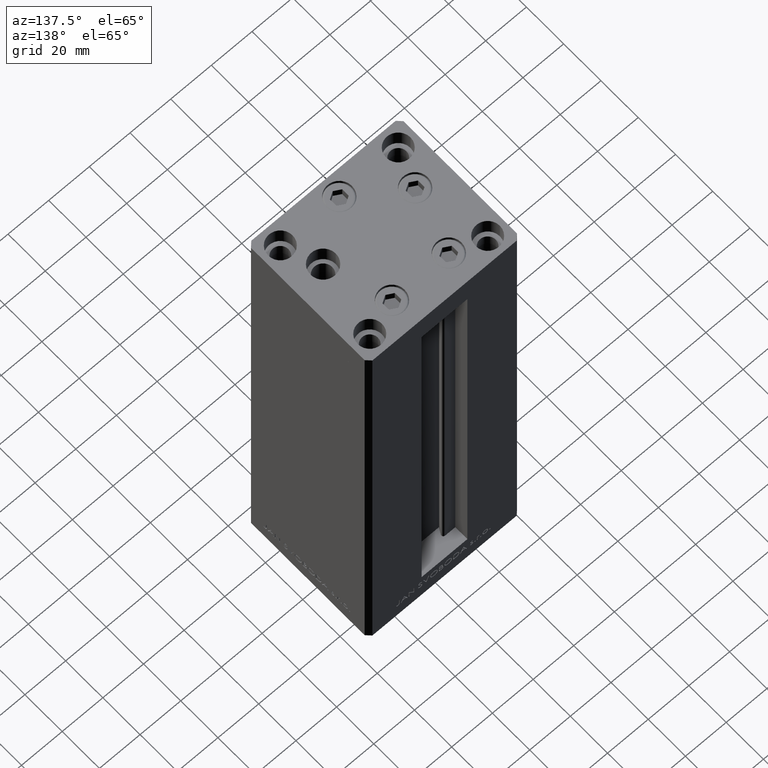
[diagram: clean part render]
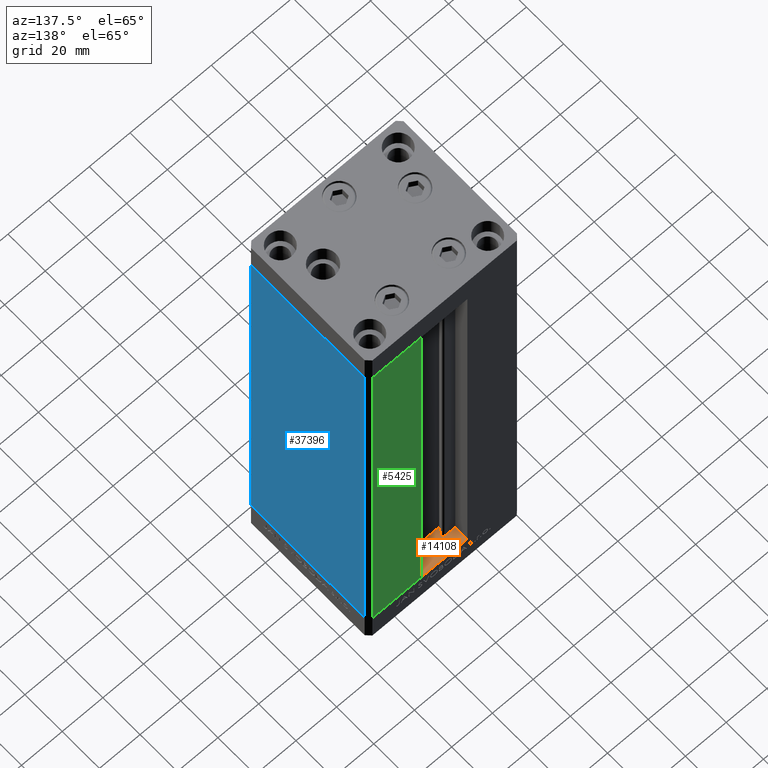
[diagram: same view with three faces highlighted in distinct colors, each labeled with its STEP entity id]
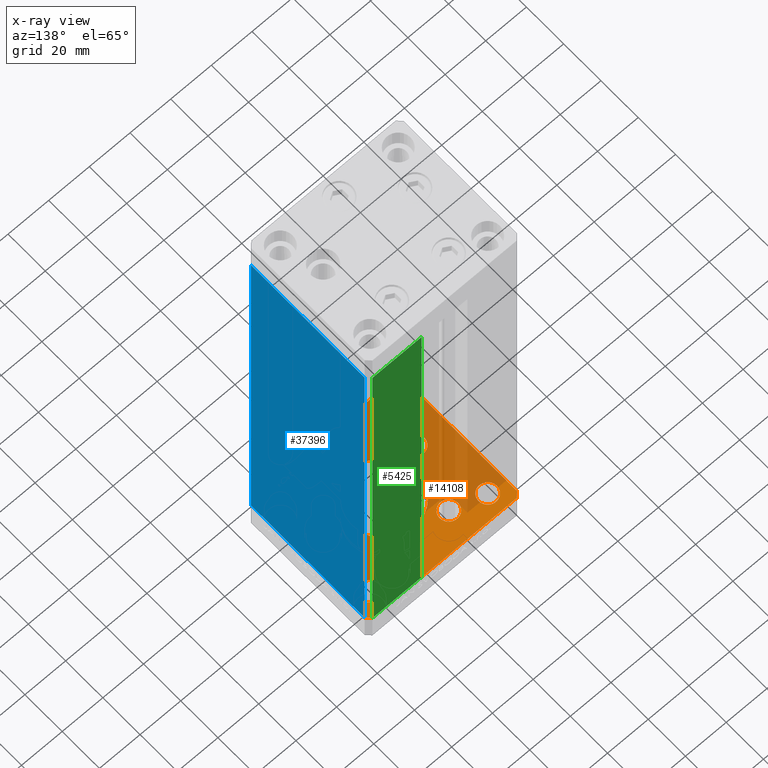
[diagram: x-ray of the same camera — body ghosted, the three highlighted faces saturated]
A machine part, auxiliary view with three faces highlighted in distinct colors.
The next image is the same camera in x-ray (body ghosted, the three faces saturated) — at least one of them is partly hidden behind the body in this view.
Their STEP definitions:

[orange] entity #14108 — the highlighted planar face has unit normal (0, 0, -1).
#306 = CARTESIAN_POINT ( 'NONE',  ( 9.491068579633235913, 19.50000000000000000, -15.00000000000000000 ) ) ;
#381 = FACE_BOUND ( 'NONE', #2397, .T. ) ;
#401 = CIRCLE ( 'NONE', #6041, 4.500000000000000888 ) ;
#686 = DIRECTION ( 'NONE',  ( 1.000000000000000000, 0.000000000000000000, 0.000000000000000000 ) ) ;
#717 = ORIENTED_EDGE ( 'NONE', *, *, #10605, .T. ) ;
#769 = ORIENTED_EDGE ( 'NONE', *, *, #49077, .F. ) ;
#964 = ORIENTED_EDGE ( 'NONE', *, *, #31906, .T. ) ;
#1410 = VERTEX_POINT ( 'NONE', #26903 ) ;
#2252 = ORIENTED_EDGE ( 'NONE', *, *, #18548, .T. ) ;
#2397 = EDGE_LOOP ( 'NONE', ( #48423, #47197 ) ) ;
#2455 = VERTEX_POINT ( 'NONE', #15011 ) ;
#2463 = EDGE_CURVE ( 'NONE', #33873, #22283, #8936, .T. ) ;
#2512 = ORIENTED_EDGE ( 'NONE', *, *, #44664, .T. ) ;
#2570 = VERTEX_POINT ( 'NONE', #30588 ) ;
#3215 = CARTESIAN_POINT ( 'NONE',  ( -18.49106857963323947, 19.50000000000000000, -15.00000000000000000 ) ) ;
#3457 = CIRCLE ( 'NONE', #23474, 4.500000000000000888 ) ;
#3520 = DIRECTION ( 'NONE',  ( 1.000000000000000000, 0.000000000000000000, 0.000000000000000000 ) ) ;
#3670 = FACE_BOUND ( 'NONE', #38796, .T. ) ;
#3817 = VERTEX_POINT ( 'NONE', #26708 ) ;
#3843 = CIRCLE ( 'NONE', #9423, 4.500000000000001776 ) ;
#4245 = CARTESIAN_POINT ( 'NONE',  ( -29.00000000000000000, -23.99999999999999645, -15.00000000000000000 ) ) ;
#4275 = AXIS2_PLACEMENT_3D ( 'NONE', #35621, #43168, #42666 ) ;
#4284 = CARTESIAN_POINT ( 'NONE',  ( 0.000000000000000000, -24.00000000000001066, -15.00000000000000000 ) ) ;
#4295 = ORIENTED_EDGE ( 'NONE', *, *, #5799, .T. ) ;
#4297 = CIRCLE ( 'NONE', #29979, 4.500000000000001776 ) ;
#4609 = VERTEX_POINT ( 'NONE', #42469 ) ;
#5140 = AXIS2_PLACEMENT_3D ( 'NONE', #17505, #29065, #48699 ) ;
#5163 = EDGE_CURVE ( 'NONE', #35081, #12331, #37034, .T. ) ;
#5181 = AXIS2_PLACEMENT_3D ( 'NONE', #30037, #7432, #14948 ) ;
#5306 = VERTEX_POINT ( 'NONE', #32220 ) ;
#5660 = EDGE_LOOP ( 'NONE', ( #717, #18066 ) ) ;
#5715 = CIRCLE ( 'NONE', #45812, 4.499999999999997335 ) ;
#5799 = EDGE_CURVE ( 'NONE', #4609, #18187, #3457, .T. ) ;
#5866 = DIRECTION ( 'NONE',  ( -0.000000000000000000, 0.000000000000000000, 1.000000000000000000 ) ) ;
#6041 = AXIS2_PLACEMENT_3D ( 'NONE', #11771, #45726, #3520 ) ;
#6489 = DIRECTION ( 'NONE',  ( -0.000000000000000000, 0.000000000000000000, 1.000000000000000000 ) ) ;
#6530 = ORIENTED_EDGE ( 'NONE', *, *, #29595, .F. ) ;
#6568 = DIRECTION ( 'NONE',  ( -0.000000000000000000, 0.000000000000000000, 1.000000000000000000 ) ) ;
#6590 = EDGE_LOOP ( 'NONE', ( #964, #2252 ) ) ;
#6747 = CARTESIAN_POINT ( 'NONE',  ( -13.99106857963324124, 19.50000000000000000, -15.00000000000000000 ) ) ;
#6813 = CARTESIAN_POINT ( 'NONE',  ( 35.50000000000000000, 32.49999999999999289, -15.00000000000000000 ) ) ;
#6936 = DIRECTION ( 'NONE',  ( 1.000000000000000000, 0.000000000000000000, 0.000000000000000000 ) ) ;
#7022 = CARTESIAN_POINT ( 'NONE',  ( -35.50000000000000711, 32.49999999999997868, -15.00000000000000000 ) ) ;
#7049 = ORIENTED_EDGE ( 'NONE', *, *, #8210, .T. ) ;
#7153 = VECTOR ( 'NONE', #33388, 1000.000000000000000 ) ;
#7272 = CARTESIAN_POINT ( 'NONE',  ( 29.00000000000000355, -23.99999999999999645, -15.00000000000000000 ) ) ;
#7410 = EDGE_CURVE ( 'NONE', #20679, #18116, #19490, .T. ) ;
#7432 = DIRECTION ( 'NONE',  ( -0.000000000000000000, 0.000000000000000000, 1.000000000000000000 ) ) ;
#7613 = ORIENTED_EDGE ( 'NONE', *, *, #27096, .T. ) ;
#7683 = FACE_BOUND ( 'NONE', #6590, .T. ) ;
#7912 = PLANE ( 'NONE',  #5181 ) ;
#8006 = ORIENTED_EDGE ( 'NONE', *, *, #37596, .T. ) ;
#8035 = AXIS2_PLACEMENT_3D ( 'NONE', #7272, #48754, #22582 ) ;
#8210 = EDGE_CURVE ( 'NONE', #22283, #33873, #34792, .T. ) ;
#8256 = ORIENTED_EDGE ( 'NONE', *, *, #2463, .T. ) ;
#8343 = AXIS2_PLACEMENT_3D ( 'NONE', #47117, #36539, #32756 ) ;
#8531 = CARTESIAN_POINT ( 'NONE',  ( -9.491068579633243019, 19.50000000000000000, -15.00000000000000000 ) ) ;
#8750 = ORIENTED_EDGE ( 'NONE', *, *, #12572, .F. ) ;
#8936 = CIRCLE ( 'NONE', #14548, 4.499999999999999112 ) ;
#9151 = VERTEX_POINT ( 'NONE', #33153 ) ;
#9213 = CARTESIAN_POINT ( 'NONE',  ( 24.50000000000000000, 24.00000000000000355, -15.00000000000000000 ) ) ;
#9423 = AXIS2_PLACEMENT_3D ( 'NONE', #4284, #15332, #16066 ) ;
#10043 = ORIENTED_EDGE ( 'NONE', *, *, #48884, .F. ) ;
#10098 = EDGE_LOOP ( 'NONE', ( #43255, #8006 ) ) ;
#10117 = CARTESIAN_POINT ( 'NONE',  ( 35.50000000000000000, 32.49999999999999289, -15.00000000000000000 ) ) ;
#10278 = CARTESIAN_POINT ( 'NONE',  ( 37.50000000000000711, 30.50000000000001421, -15.00000000000000000 ) ) ;
#10605 = EDGE_CURVE ( 'NONE', #5306, #17454, #26044, .T. ) ;
#10638 = EDGE_LOOP ( 'NONE', ( #2512, #7613 ) ) ;
#10850 = VERTEX_POINT ( 'NONE', #9213 ) ;
#11267 = VERTEX_POINT ( 'NONE', #47598 ) ;
#11420 = DIRECTION ( 'NONE',  ( -0.000000000000000000, 0.000000000000000000, 1.000000000000000000 ) ) ;
#11771 = CARTESIAN_POINT ( 'NONE',  ( -29.00000000000000000, 24.00000000000000711, -15.00000000000000000 ) ) ;
#12331 = VERTEX_POINT ( 'NONE', #43122 ) ;
#12572 = EDGE_CURVE ( 'NONE', #12331, #2455, #31238, .T. ) ;
#12758 = CIRCLE ( 'NONE', #40860, 4.499999999999997335 ) ;
#13146 = AXIS2_PLACEMENT_3D ( 'NONE', #20186, #43325, #47596 ) ;
#13484 = CARTESIAN_POINT ( 'NONE',  ( -29.00000000000000000, 24.00000000000000711, -15.00000000000000000 ) ) ;
#13583 = DIRECTION ( 'NONE',  ( -0.000000000000000000, 0.000000000000000000, 1.000000000000000000 ) ) ;
#14071 = CARTESIAN_POINT ( 'NONE',  ( -29.00000000000000000, -23.99999999999999645, -15.00000000000000000 ) ) ;
#14108 = ADVANCED_FACE ( 'NONE', ( #26508, #30523, #22739, #33803, #26757, #15436, #41364, #381, #46114, #3670, #7683 ), #7912, .F. ) ;
#14381 = CARTESIAN_POINT ( 'NONE',  ( -37.50000000000001421, 30.50000000000000000, -15.00000000000000000 ) ) ;
#14488 = ORIENTED_EDGE ( 'NONE', *, *, #7410, .F. ) ;
#14548 = AXIS2_PLACEMENT_3D ( 'NONE', #6747, #6489, #33371 ) ;
#14746 = EDGE_CURVE ( 'NONE', #34881, #11267, #401, .T. ) ;
#14948 = DIRECTION ( 'NONE',  ( 1.000000000000000000, 0.000000000000000000, 0.000000000000000000 ) ) ;
#15011 = CARTESIAN_POINT ( 'NONE',  ( 35.50000000000001421, -32.49999999999992184, -15.00000000000000000 ) ) ;
#15332 = DIRECTION ( 'NONE',  ( -0.000000000000000000, 0.000000000000000000, 1.000000000000000000 ) ) ;
#15436 = FACE_BOUND ( 'NONE', #16404, .T. ) ;
#15496 = CARTESIAN_POINT ( 'NONE',  ( 22.62741699796953299, -8.000000000000000000, -15.00000000000000000 ) ) ;
#15552 = CIRCLE ( 'NONE', #49305, 4.500000000000005329 ) ;
#15792 = DIRECTION ( 'NONE',  ( 0.000000000000000000, -0.000000000000000000, -1.000000000000000000 ) ) ;
#15836 = DIRECTION ( 'NONE',  ( 0.000000000000000000, 1.000000000000000000, 0.000000000000000000 ) ) ;
#16018 = CIRCLE ( 'NONE', #44136, 4.500000000000000888 ) ;
#16066 = DIRECTION ( 'NONE',  ( 1.000000000000000000, 0.000000000000000000, 0.000000000000000000 ) ) ;
#16404 = EDGE_LOOP ( 'NONE', ( #7049, #8256 ) ) ;
#16859 = CARTESIAN_POINT ( 'NONE',  ( 13.99106857963324124, 19.50000000000000000, -15.00000000000000000 ) ) ;
#17126 = VECTOR ( 'NONE', #45110, 1000.000000000000000 ) ;
#17454 = VERTEX_POINT ( 'NONE', #306 ) ;
#17505 = CARTESIAN_POINT ( 'NONE',  ( 29.00000000000000000, 24.00000000000000355, -15.00000000000000000 ) ) ;
#17783 = EDGE_CURVE ( 'NONE', #18116, #20679, #48689, .T. ) ;
#17840 = CARTESIAN_POINT ( 'NONE',  ( -4.500000000000001776, -24.00000000000001066, -15.00000000000000000 ) ) ;
#18048 = LINE ( 'NONE', #7022, #7153 ) ;
#18066 = ORIENTED_EDGE ( 'NONE', *, *, #45104, .T. ) ;
#18116 = VERTEX_POINT ( 'NONE', #30841 ) ;
#18187 = VERTEX_POINT ( 'NONE', #38622 ) ;
#18349 = DIRECTION ( 'NONE',  ( 1.000000000000000000, 0.000000000000000000, 0.000000000000000000 ) ) ;
#18445 = CARTESIAN_POINT ( 'NONE',  ( -33.50000000000000000, -23.99999999999999645, -15.00000000000000000 ) ) ;
#18548 = EDGE_CURVE ( 'NONE', #1410, #2570, #43663, .T. ) ;
#18811 = VECTOR ( 'NONE', #45986, 1000.000000000000000 ) ;
#19054 = ORIENTED_EDGE ( 'NONE', *, *, #46088, .F. ) ;
#19490 = CIRCLE ( 'NONE', #4275, 16.00000000000000000 ) ;
#19966 = AXIS2_PLACEMENT_3D ( 'NONE', #4245, #15792, #23081 ) ;
#19970 = ORIENTED_EDGE ( 'NONE', *, *, #39045, .T. ) ;
#20186 = CARTESIAN_POINT ( 'NONE',  ( 29.00000000000000000, 24.00000000000000355, -15.00000000000000000 ) ) ;
#20259 = ORIENTED_EDGE ( 'NONE', *, *, #17783, .F. ) ;
#20679 = VERTEX_POINT ( 'NONE', #32788 ) ;
#20865 = CIRCLE ( 'NONE', #8035, 4.499999999999997335 ) ;
#21168 = DIRECTION ( 'NONE',  ( 1.000000000000000000, 0.000000000000000000, 0.000000000000000000 ) ) ;
#21180 = VECTOR ( 'NONE', #48843, 1000.000000000000000 ) ;
#21865 = VECTOR ( 'NONE', #41318, 1000.000000000000000 ) ;
#21978 = LINE ( 'NONE', #37318, #17126 ) ;
#22283 = VERTEX_POINT ( 'NONE', #8531 ) ;
#22487 = CARTESIAN_POINT ( 'NONE',  ( 0.000000000000000000, -24.00000000000001066, -15.00000000000000000 ) ) ;
#22582 = DIRECTION ( 'NONE',  ( 1.000000000000000000, 0.000000000000000000, 0.000000000000000000 ) ) ;
#22600 = DIRECTION ( 'NONE',  ( 0.000000000000000000, -0.000000000000000000, -1.000000000000000000 ) ) ;
#22739 = FACE_BOUND ( 'NONE', #10638, .T. ) ;
#23081 = DIRECTION ( 'NONE',  ( 1.000000000000000000, 0.000000000000000000, 0.000000000000000000 ) ) ;
#23102 = CARTESIAN_POINT ( 'NONE',  ( 0.000000000000000000, 0.000000000000000000, -15.00000000000000000 ) ) ;
#23474 = AXIS2_PLACEMENT_3D ( 'NONE', #43422, #47441, #32103 ) ;
#23619 = LINE ( 'NONE', #42241, #27864 ) ;
#23815 = VERTEX_POINT ( 'NONE', #41702 ) ;
#24009 = EDGE_LOOP ( 'NONE', ( #44419, #10043 ) ) ;
#24026 = DIRECTION ( 'NONE',  ( -0.000000000000000000, 0.000000000000000000, 1.000000000000000000 ) ) ;
#24130 = CARTESIAN_POINT ( 'NONE',  ( -37.50000000000001421, 30.50000000000000000, -15.00000000000000000 ) ) ;
#24245 = EDGE_LOOP ( 'NONE', ( #19970, #4295 ) ) ;
#24691 = CARTESIAN_POINT ( 'NONE',  ( -22.62741699796953299, -8.000000000000000000, -15.00000000000000000 ) ) ;
#24785 = EDGE_CURVE ( 'NONE', #38529, #9151, #40864, .T. ) ;
#25132 = CARTESIAN_POINT ( 'NONE',  ( 13.99106857963324124, 19.50000000000000000, -15.00000000000000000 ) ) ;
#25384 = DIRECTION ( 'NONE',  ( -0.000000000000000000, 0.000000000000000000, 1.000000000000000000 ) ) ;
#25627 = EDGE_CURVE ( 'NONE', #46077, #39714, #23619, .T. ) ;
#25976 = CARTESIAN_POINT ( 'NONE',  ( -37.50000000000000000, -30.50000000000004263, -15.00000000000000000 ) ) ;
#26044 = CIRCLE ( 'NONE', #38882, 4.500000000000005329 ) ;
#26354 = ORIENTED_EDGE ( 'NONE', *, *, #25627, .F. ) ;
#26508 = FACE_BOUND ( 'NONE', #48142, .T. ) ;
#26708 = CARTESIAN_POINT ( 'NONE',  ( -18.12741699796953654, -8.000000000000000000, -15.00000000000000000 ) ) ;
#26757 = FACE_BOUND ( 'NONE', #5660, .T. ) ;
#26903 = CARTESIAN_POINT ( 'NONE',  ( 24.50000000000000711, -23.99999999999999645, -15.00000000000000000 ) ) ;
#27096 = EDGE_CURVE ( 'NONE', #47324, #33773, #3843, .T. ) ;
#27326 = VERTEX_POINT ( 'NONE', #42180 ) ;
#27342 = ORIENTED_EDGE ( 'NONE', *, *, #5163, .F. ) ;
#27864 = VECTOR ( 'NONE', #15836, 1000.000000000000000 ) ;
#28085 = CARTESIAN_POINT ( 'NONE',  ( -13.99106857963324124, 19.50000000000000000, -15.00000000000000000 ) ) ;
#28999 = VERTEX_POINT ( 'NONE', #29981 ) ;
#29065 = DIRECTION ( 'NONE',  ( 0.000000000000000000, -0.000000000000000000, -1.000000000000000000 ) ) ;
#29357 = EDGE_CURVE ( 'NONE', #3817, #23815, #12758, .T. ) ;
#29595 = EDGE_CURVE ( 'NONE', #27326, #42950, #18048, .T. ) ;
#29761 = AXIS2_PLACEMENT_3D ( 'NONE', #14071, #22600, #37680 ) ;
#29920 = CARTESIAN_POINT ( 'NONE',  ( -22.62741699796953299, -8.000000000000000000, -15.00000000000000000 ) ) ;
#29979 = AXIS2_PLACEMENT_3D ( 'NONE', #22487, #11420, #6936 ) ;
#29981 = CARTESIAN_POINT ( 'NONE',  ( 33.50000000000000000, 24.00000000000000355, -15.00000000000000000 ) ) ;
#30037 = CARTESIAN_POINT ( 'NONE',  ( 0.000000000000000000, 0.000000000000000000, -15.00000000000000000 ) ) ;
#30523 = FACE_BOUND ( 'NONE', #10098, .T. ) ;
#30588 = CARTESIAN_POINT ( 'NONE',  ( 33.50000000000000000, -23.99999999999999645, -15.00000000000000000 ) ) ;
#30607 = EDGE_CURVE ( 'NONE', #11267, #34881, #16018, .T. ) ;
#30841 = CARTESIAN_POINT ( 'NONE',  ( 16.00000000000000000, 0.000000000000000000, -15.00000000000000000 ) ) ;
#31238 = LINE ( 'NONE', #43308, #47687 ) ;
#31747 = DIRECTION ( 'NONE',  ( 1.000000000000000000, 1.172770800660376149E-15, 0.000000000000000000 ) ) ;
#31759 = DIRECTION ( 'NONE',  ( -0.7071067811865524577, 0.7071067811865426878, 0.000000000000000000 ) ) ;
#31906 = EDGE_CURVE ( 'NONE', #2570, #1410, #20865, .T. ) ;
#32103 = DIRECTION ( 'NONE',  ( 1.000000000000000000, 0.000000000000000000, 0.000000000000000000 ) ) ;
#32220 = CARTESIAN_POINT ( 'NONE',  ( 18.49106857963324657, 19.50000000000000000, -15.00000000000000000 ) ) ;
#32340 = DIRECTION ( 'NONE',  ( 1.000000000000000000, 0.000000000000000000, 0.000000000000000000 ) ) ;
#32417 = CIRCLE ( 'NONE', #5140, 4.500000000000000888 ) ;
#32462 = VECTOR ( 'NONE', #31759, 1000.000000000000000 ) ;
#32756 = DIRECTION ( 'NONE',  ( 1.000000000000000000, 0.000000000000000000, 0.000000000000000000 ) ) ;
#32788 = CARTESIAN_POINT ( 'NONE',  ( -16.00000000000000000, 1.959434878635765131E-15, -15.00000000000000000 ) ) ;
#32921 = CARTESIAN_POINT ( 'NONE',  ( 37.50000000000000711, 30.50000000000001421, -15.00000000000000000 ) ) ;
#33153 = CARTESIAN_POINT ( 'NONE',  ( -24.50000000000000000, -23.99999999999999645, -15.00000000000000000 ) ) ;
#33371 = DIRECTION ( 'NONE',  ( 1.000000000000000000, 0.000000000000000000, 0.000000000000000000 ) ) ;
#33388 = DIRECTION ( 'NONE',  ( -0.7071067811865524577, -0.7071067811865426878, 0.000000000000000000 ) ) ;
#33592 = VERTEX_POINT ( 'NONE', #10117 ) ;
#33773 = VERTEX_POINT ( 'NONE', #45547 ) ;
#33803 = FACE_BOUND ( 'NONE', #24245, .T. ) ;
#33873 = VERTEX_POINT ( 'NONE', #3215 ) ;
#34456 = DIRECTION ( 'NONE',  ( 1.000000000000000000, 0.000000000000000000, 0.000000000000000000 ) ) ;
#34635 = ORIENTED_EDGE ( 'NONE', *, *, #43715, .F. ) ;
#34792 = CIRCLE ( 'NONE', #38802, 4.499999999999999112 ) ;
#34811 = CIRCLE ( 'NONE', #13146, 4.500000000000000888 ) ;
#34881 = VERTEX_POINT ( 'NONE', #46781 ) ;
#35081 = VERTEX_POINT ( 'NONE', #43206 ) ;
#35267 = LINE ( 'NONE', #32921, #32462 ) ;
#35358 = CIRCLE ( 'NONE', #29761, 4.500000000000000888 ) ;
#35621 = CARTESIAN_POINT ( 'NONE',  ( 0.000000000000000000, 0.000000000000000000, -15.00000000000000000 ) ) ;
#35871 = DIRECTION ( 'NONE',  ( -0.000000000000000000, 0.000000000000000000, 1.000000000000000000 ) ) ;
#36019 = CARTESIAN_POINT ( 'NONE',  ( 37.50000000000000711, -30.49999999999992895, -15.00000000000000000 ) ) ;
#36539 = DIRECTION ( 'NONE',  ( -0.000000000000000000, 0.000000000000000000, 1.000000000000000000 ) ) ;
#37004 = CIRCLE ( 'NONE', #41033, 4.500000000000000888 ) ;
#37034 = LINE ( 'NONE', #25976, #21865 ) ;
#37260 = LINE ( 'NONE', #14381, #21180 ) ;
#37318 = CARTESIAN_POINT ( 'NONE',  ( 35.50000000000001421, -32.49999999999992184, -15.00000000000000000 ) ) ;
#37365 = EDGE_LOOP ( 'NONE', ( #27342, #769, #6530, #48253, #19054, #26354, #34635, #8750 ) ) ;
#37454 = DIRECTION ( 'NONE',  ( 0.000000000000000000, -0.000000000000000000, -1.000000000000000000 ) ) ;
#37596 = EDGE_CURVE ( 'NONE', #23815, #3817, #5715, .T. ) ;
#37680 = DIRECTION ( 'NONE',  ( 1.000000000000000000, 0.000000000000000000, 0.000000000000000000 ) ) ;
#37953 = EDGE_CURVE ( 'NONE', #9151, #38529, #35358, .T. ) ;
#38529 = VERTEX_POINT ( 'NONE', #18445 ) ;
#38622 = CARTESIAN_POINT ( 'NONE',  ( 27.12741699796953654, -8.000000000000000000, -15.00000000000000000 ) ) ;
#38796 = EDGE_LOOP ( 'NONE', ( #42671, #46968 ) ) ;
#38802 = AXIS2_PLACEMENT_3D ( 'NONE', #28085, #47198, #34456 ) ;
#38882 = AXIS2_PLACEMENT_3D ( 'NONE', #25132, #25384, #40225 ) ;
#39045 = EDGE_CURVE ( 'NONE', #18187, #4609, #37004, .T. ) ;
#39714 = VERTEX_POINT ( 'NONE', #10278 ) ;
#40225 = DIRECTION ( 'NONE',  ( 1.000000000000000000, 0.000000000000000000, 0.000000000000000000 ) ) ;
#40234 = DIRECTION ( 'NONE',  ( 1.000000000000000000, 0.000000000000000000, 0.000000000000000000 ) ) ;
#40860 = AXIS2_PLACEMENT_3D ( 'NONE', #29920, #6568, #18349 ) ;
#40864 = CIRCLE ( 'NONE', #19966, 4.500000000000000888 ) ;
#41033 = AXIS2_PLACEMENT_3D ( 'NONE', #15496, #24026, #686 ) ;
#41225 = LINE ( 'NONE', #6813, #18811 ) ;
#41318 = DIRECTION ( 'NONE',  ( 0.7071067811865512365, -0.7071067811865439090, 0.000000000000000000 ) ) ;
#41364 = FACE_BOUND ( 'NONE', #24009, .T. ) ;
#41702 = CARTESIAN_POINT ( 'NONE',  ( -27.12741699796953299, -8.000000000000000000, -15.00000000000000000 ) ) ;
#42180 = CARTESIAN_POINT ( 'NONE',  ( -35.50000000000000711, 32.49999999999997868, -15.00000000000000000 ) ) ;
#42241 = CARTESIAN_POINT ( 'NONE',  ( 37.50000000000000711, -30.49999999999992895, -15.00000000000000000 ) ) ;
#42469 = CARTESIAN_POINT ( 'NONE',  ( 18.12741699796953299, -8.000000000000000000, -15.00000000000000000 ) ) ;
#42666 = DIRECTION ( 'NONE',  ( 1.000000000000000000, 0.000000000000000000, 0.000000000000000000 ) ) ;
#42671 = ORIENTED_EDGE ( 'NONE', *, *, #14746, .T. ) ;
#42950 = VERTEX_POINT ( 'NONE', #24130 ) ;
#43122 = CARTESIAN_POINT ( 'NONE',  ( -35.50000000000001421, -32.50000000000000711, -15.00000000000000000 ) ) ;
#43168 = DIRECTION ( 'NONE',  ( 0.000000000000000000, -0.000000000000000000, -1.000000000000000000 ) ) ;
#43206 = CARTESIAN_POINT ( 'NONE',  ( -37.50000000000000000, -30.50000000000004263, -15.00000000000000000 ) ) ;
#43255 = ORIENTED_EDGE ( 'NONE', *, *, #29357, .T. ) ;
#43308 = CARTESIAN_POINT ( 'NONE',  ( -35.50000000000001421, -32.50000000000000711, -15.00000000000000000 ) ) ;
#43325 = DIRECTION ( 'NONE',  ( 0.000000000000000000, -0.000000000000000000, -1.000000000000000000 ) ) ;
#43422 = CARTESIAN_POINT ( 'NONE',  ( 22.62741699796953299, -8.000000000000000000, -15.00000000000000000 ) ) ;
#43663 = CIRCLE ( 'NONE', #8343, 4.499999999999997335 ) ;
#43715 = EDGE_CURVE ( 'NONE', #2455, #46077, #21978, .T. ) ;
#44136 = AXIS2_PLACEMENT_3D ( 'NONE', #13484, #35871, #32340 ) ;
#44419 = ORIENTED_EDGE ( 'NONE', *, *, #45321, .F. ) ;
#44664 = EDGE_CURVE ( 'NONE', #33773, #47324, #4297, .T. ) ;
#45104 = EDGE_CURVE ( 'NONE', #17454, #5306, #15552, .T. ) ;
#45110 = DIRECTION ( 'NONE',  ( 0.7071067811865463515, 0.7071067811865487940, 0.000000000000000000 ) ) ;
#45321 = EDGE_CURVE ( 'NONE', #28999, #10850, #32417, .T. ) ;
#45547 = CARTESIAN_POINT ( 'NONE',  ( 4.500000000000001776, -24.00000000000001066, -15.00000000000000000 ) ) ;
#45726 = DIRECTION ( 'NONE',  ( -0.000000000000000000, 0.000000000000000000, 1.000000000000000000 ) ) ;
#45812 = AXIS2_PLACEMENT_3D ( 'NONE', #24691, #5866, #21168 ) ;
#45984 = DIRECTION ( 'NONE',  ( 1.000000000000000000, 0.000000000000000000, 0.000000000000000000 ) ) ;
#45986 = DIRECTION ( 'NONE',  ( -1.000000000000000000, -1.954618001100627573E-16, 0.000000000000000000 ) ) ;
#46077 = VERTEX_POINT ( 'NONE', #36019 ) ;
#46088 = EDGE_CURVE ( 'NONE', #39714, #33592, #35267, .T. ) ;
#46114 = FACE_OUTER_BOUND ( 'NONE', #37365, .T. ) ;
#46781 = CARTESIAN_POINT ( 'NONE',  ( -24.50000000000000000, 24.00000000000000711, -15.00000000000000000 ) ) ;
#46968 = ORIENTED_EDGE ( 'NONE', *, *, #30607, .T. ) ;
#47117 = CARTESIAN_POINT ( 'NONE',  ( 29.00000000000000355, -23.99999999999999645, -15.00000000000000000 ) ) ;
#47197 = ORIENTED_EDGE ( 'NONE', *, *, #24785, .F. ) ;
#47198 = DIRECTION ( 'NONE',  ( -0.000000000000000000, 0.000000000000000000, 1.000000000000000000 ) ) ;
#47324 = VERTEX_POINT ( 'NONE', #17840 ) ;
#47441 = DIRECTION ( 'NONE',  ( -0.000000000000000000, 0.000000000000000000, 1.000000000000000000 ) ) ;
#47596 = DIRECTION ( 'NONE',  ( 1.000000000000000000, 0.000000000000000000, 0.000000000000000000 ) ) ;
#47598 = CARTESIAN_POINT ( 'NONE',  ( -33.50000000000000000, 24.00000000000000711, -15.00000000000000000 ) ) ;
#47687 = VECTOR ( 'NONE', #31747, 1000.000000000000000 ) ;
#48142 = EDGE_LOOP ( 'NONE', ( #20259, #14488 ) ) ;
#48253 = ORIENTED_EDGE ( 'NONE', *, *, #49510, .F. ) ;
#48423 = ORIENTED_EDGE ( 'NONE', *, *, #37953, .F. ) ;
#48689 = CIRCLE ( 'NONE', #49516, 16.00000000000000000 ) ;
#48699 = DIRECTION ( 'NONE',  ( 1.000000000000000000, 0.000000000000000000, 0.000000000000000000 ) ) ;
#48754 = DIRECTION ( 'NONE',  ( -0.000000000000000000, 0.000000000000000000, 1.000000000000000000 ) ) ;
#48843 = DIRECTION ( 'NONE',  ( 2.275047181608926165E-16, -1.000000000000000000, 0.000000000000000000 ) ) ;
#48884 = EDGE_CURVE ( 'NONE', #10850, #28999, #34811, .T. ) ;
#49077 = EDGE_CURVE ( 'NONE', #42950, #35081, #37260, .T. ) ;
#49305 = AXIS2_PLACEMENT_3D ( 'NONE', #16859, #13583, #40234 ) ;
#49510 = EDGE_CURVE ( 'NONE', #33592, #27326, #41225, .T. ) ;
#49516 = AXIS2_PLACEMENT_3D ( 'NONE', #23102, #37454, #45984 ) ;

[blue] entity #37396 — the highlighted planar face has unit normal (1, -0, 0).
#2699 = DIRECTION ( 'NONE',  ( 2.275047181608928137E-16, 1.000000000000000000, 0.000000000000000000 ) ) ;
#3518 = VECTOR ( 'NONE', #39883, 1000.000000000000000 ) ;
#6499 = LINE ( 'NONE', #9519, #29182 ) ;
#7886 = ORIENTED_EDGE ( 'NONE', *, *, #19044, .T. ) ;
#9232 = LINE ( 'NONE', #21271, #3518 ) ;
#9519 = CARTESIAN_POINT ( 'NONE',  ( 37.49999999999999289, -30.50000000000000000, 206.0000000000000000 ) ) ;
#10810 = DIRECTION ( 'NONE',  ( -2.275047181608927644E-16, -1.000000000000000000, 0.000000000000000000 ) ) ;
#11548 = LINE ( 'NONE', #22866, #23013 ) ;
#11812 = EDGE_CURVE ( 'NONE', #15113, #34314, #6499, .T. ) ;
#13996 = FACE_OUTER_BOUND ( 'NONE', #45299, .T. ) ;
#14121 = VERTEX_POINT ( 'NONE', #22490 ) ;
#15113 = VERTEX_POINT ( 'NONE', #45671 ) ;
#17735 = EDGE_CURVE ( 'NONE', #14121, #34314, #11548, .T. ) ;
#19044 = EDGE_CURVE ( 'NONE', #35578, #15113, #9232, .T. ) ;
#21271 = CARTESIAN_POINT ( 'NONE',  ( 37.50000000000000711, 30.50000000000000000, 206.0000000000000000 ) ) ;
#22277 = DIRECTION ( 'NONE',  ( 1.000000000000000000, -2.275047181608928137E-16, 0.000000000000000000 ) ) ;
#22490 = CARTESIAN_POINT ( 'NONE',  ( 37.50000000000000711, 30.50000000000000000, 0.000000000000000000 ) ) ;
#22531 = PLANE ( 'NONE',  #31346 ) ;
#22866 = CARTESIAN_POINT ( 'NONE',  ( 37.50000000000000711, 30.50000000000000000, 0.000000000000000000 ) ) ;
#23013 = VECTOR ( 'NONE', #10810, 1000.000000000000000 ) ;
#23576 = VECTOR ( 'NONE', #25874, 1000.000000000000000 ) ;
#24840 = DIRECTION ( 'NONE',  ( -0.000000000000000000, -0.000000000000000000, -1.000000000000000000 ) ) ;
#25565 = CARTESIAN_POINT ( 'NONE',  ( 37.49999999999999289, -30.50000000000000000, 0.000000000000000000 ) ) ;
#25874 = DIRECTION ( 'NONE',  ( -0.000000000000000000, -0.000000000000000000, -1.000000000000000000 ) ) ;
#26381 = CARTESIAN_POINT ( 'NONE',  ( 37.50000000000000711, 30.50000000000000000, 206.0000000000000000 ) ) ;
#29182 = VECTOR ( 'NONE', #24840, 1000.000000000000000 ) ;
#31346 = AXIS2_PLACEMENT_3D ( 'NONE', #37107, #22277, #2699 ) ;
#33551 = ORIENTED_EDGE ( 'NONE', *, *, #48478, .F. ) ;
#34314 = VERTEX_POINT ( 'NONE', #25565 ) ;
#35578 = VERTEX_POINT ( 'NONE', #48671 ) ;
#37107 = CARTESIAN_POINT ( 'NONE',  ( 37.50000000000000711, 30.50000000000000000, 206.0000000000000000 ) ) ;
#37396 = ADVANCED_FACE ( 'NONE', ( #13996 ), #22531, .T. ) ;
#37448 = LINE ( 'NONE', #26381, #23576 ) ;
#37727 = ORIENTED_EDGE ( 'NONE', *, *, #17735, .F. ) ;
#39883 = DIRECTION ( 'NONE',  ( -2.275047181608927644E-16, -1.000000000000000000, 0.000000000000000000 ) ) ;
#45299 = EDGE_LOOP ( 'NONE', ( #37727, #33551, #7886, #49674 ) ) ;
#45671 = CARTESIAN_POINT ( 'NONE',  ( 37.49999999999999289, -30.50000000000000000, 206.0000000000000000 ) ) ;
#48478 = EDGE_CURVE ( 'NONE', #35578, #14121, #37448, .T. ) ;
#48671 = CARTESIAN_POINT ( 'NONE',  ( 37.50000000000000711, 30.50000000000000000, 206.0000000000000000 ) ) ;
#49674 = ORIENTED_EDGE ( 'NONE', *, *, #11812, .T. ) ;

[green] entity #5425 — the highlighted planar face has unit normal (0, -1, 0).
#4936 = CARTESIAN_POINT ( 'NONE',  ( 35.50000000000000000, 32.49999999999999289, 206.0000000000000000 ) ) ;
#5425 = ADVANCED_FACE ( 'NONE', ( #46260 ), #12047, .F. ) ;
#6527 = VECTOR ( 'NONE', #8697, 1000.000000000000000 ) ;
#8072 = LINE ( 'NONE', #31182, #13104 ) ;
#8697 = DIRECTION ( 'NONE',  ( -0.000000000000000000, -0.000000000000000000, -1.000000000000000000 ) ) ;
#10911 = VERTEX_POINT ( 'NONE', #46919 ) ;
#11018 = LINE ( 'NONE', #30364, #14186 ) ;
#11429 = CARTESIAN_POINT ( 'NONE',  ( 35.50000000000000000, 32.49999999999999289, 0.000000000000000000 ) ) ;
#11811 = DIRECTION ( 'NONE',  ( 0.000000000000000000, -0.000000000000000000, -1.000000000000000000 ) ) ;
#12047 = PLANE ( 'NONE',  #36340 ) ;
#13104 = VECTOR ( 'NONE', #43249, 1000.000000000000000 ) ;
#14056 = ORIENTED_EDGE ( 'NONE', *, *, #21215, .T. ) ;
#14186 = VECTOR ( 'NONE', #45698, 1000.000000000000000 ) ;
#16217 = CARTESIAN_POINT ( 'NONE',  ( 35.50000000000000000, 32.49999999999999289, 206.0000000000000000 ) ) ;
#16594 = VECTOR ( 'NONE', #38698, 1000.000000000000000 ) ;
#17498 = CARTESIAN_POINT ( 'NONE',  ( 11.24999999999999467, 32.49999999999999289, 206.0000000000000000 ) ) ;
#18424 = VERTEX_POINT ( 'NONE', #11429 ) ;
#21215 = EDGE_CURVE ( 'NONE', #32289, #33270, #8072, .T. ) ;
#22539 = ORIENTED_EDGE ( 'NONE', *, *, #26400, .T. ) ;
#25581 = EDGE_CURVE ( 'NONE', #10911, #32289, #34940, .T. ) ;
#25828 = ORIENTED_EDGE ( 'NONE', *, *, #25581, .T. ) ;
#26400 = EDGE_CURVE ( 'NONE', #18424, #10911, #11018, .T. ) ;
#30364 = CARTESIAN_POINT ( 'NONE',  ( -11.25000000000000178, 32.49999999999999289, 0.000000000000000000 ) ) ;
#31182 = CARTESIAN_POINT ( 'NONE',  ( -11.25000000000000178, 32.49999999999999289, 206.0000000000000000 ) ) ;
#31694 = ORIENTED_EDGE ( 'NONE', *, *, #38503, .T. ) ;
#32289 = VERTEX_POINT ( 'NONE', #17498 ) ;
#33270 = VERTEX_POINT ( 'NONE', #16217 ) ;
#34693 = CARTESIAN_POINT ( 'NONE',  ( -11.25000000000000178, 32.49999999999999289, 206.0000000000000000 ) ) ;
#34940 = LINE ( 'NONE', #46751, #16594 ) ;
#36340 = AXIS2_PLACEMENT_3D ( 'NONE', #34693, #45527, #11811 ) ;
#38503 = EDGE_CURVE ( 'NONE', #33270, #18424, #47653, .T. ) ;
#38698 = DIRECTION ( 'NONE',  ( -0.000000000000000000, -0.000000000000000000, 1.000000000000000000 ) ) ;
#43249 = DIRECTION ( 'NONE',  ( 1.000000000000000000, 0.000000000000000000, 0.000000000000000000 ) ) ;
#45527 = DIRECTION ( 'NONE',  ( 0.000000000000000000, -1.000000000000000000, 0.000000000000000000 ) ) ;
#45698 = DIRECTION ( 'NONE',  ( -1.000000000000000000, 0.000000000000000000, 0.000000000000000000 ) ) ;
#46260 = FACE_OUTER_BOUND ( 'NONE', #48643, .T. ) ;
#46751 = CARTESIAN_POINT ( 'NONE',  ( 11.25000000000000178, 32.49999999999999289, 0.000000000000000000 ) ) ;
#46919 = CARTESIAN_POINT ( 'NONE',  ( 11.25000000000000178, 32.49999999999999289, 0.000000000000000000 ) ) ;
#47653 = LINE ( 'NONE', #4936, #6527 ) ;
#48643 = EDGE_LOOP ( 'NONE', ( #22539, #25828, #14056, #31694 ) ) ;